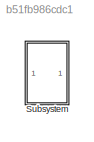
MODEL slx_b51fb986cdc1
KIND model
CONFIG AbsTol = auto
CONFIG EnableMultiTasking = off
CONFIG FixedStep = auto
CONFIG MaxStep = auto
CONFIG MinStep = auto
CONFIG RelTol = 1e-3
CONFIG SampleTimeConstraint = Unconstrained
CONFIG Solver = VariableStepAuto
CONFIG SolverName = VariableStepAuto
CONFIG StartTime = 0.0
CONFIG StopTime = 1500
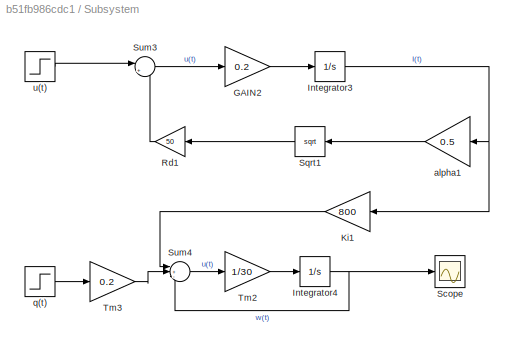
BLOCK [SubSystem] Subsystem
  Ports = []
  RequestExecContextInheritance = off
BLOCK [Gain] Subsystem/GAIN2
  Gain = 0.2
  OutDataTypeStr = Inherit: Inherit via internal rule
  ParamDataTypeStr = Inherit: Inherit via internal rule
  SaturateOnIntegerOverflow = off
BLOCK [Integrator] Subsystem/Integrator3
  InitialCondition = 0.0072
  Ports = [1, 1]
BLOCK [Integrator] Subsystem/Integrator4
  Ports = [1, 1]
BLOCK [Gain] Subsystem/Ki1
  Gain = 800
  OutDataTypeStr = Inherit: Inherit via internal rule
  ParamDataTypeStr = Inherit: Inherit via internal rule
  SaturateOnIntegerOverflow = off
BLOCK [Gain] Subsystem/Rd1
  Gain = 50
  OutDataTypeStr = Inherit: Inherit via internal rule
  ParamDataTypeStr = Inherit: Inherit via internal rule
  SaturateOnIntegerOverflow = off
BLOCK [Scope] Subsystem/Scope
  Floating = off
  NumInputPorts = 1
  Ports = [1]
  ScopeSpecificationString = Simulink.scopes.TimeScopeBlockCfg('CurrentConfiguration', extmgr.ConfigurationSet(extmgr.Configuration('Core','General UI',true),extmgr.Configuration('Core','Source UI',true),extmgr.Configuration('Sources','WiredSimulink',true),extmgr.Configuration('Visuals','Time Domain',true,'SerializedDisplays',{struct('MinYLimReal','-1.28','MaxYLimReal','11.52','YLabelReal','','MinYLimMag','0.00000','MaxYLimMa...<+1360ch>
BLOCK [Sqrt] Subsystem/Sqrt1
BLOCK [Sum] Subsystem/Sum3
  IconShape = round
  InputSameDT = off
  Inputs = |+-
  OutDataTypeStr = Inherit: Inherit via internal rule
  Ports = [2, 1]
  SaturateOnIntegerOverflow = off
BLOCK [Sum] Subsystem/Sum4
  IconShape = round
  InputSameDT = off
  Inputs = |+--
  OutDataTypeStr = Inherit: Inherit via internal rule
  Ports = [3, 1]
  SaturateOnIntegerOverflow = off
BLOCK [Gain] Subsystem/Tm2
  Gain = 1/30
  OutDataTypeStr = Inherit: Inherit via internal rule
  ParamDataTypeStr = Inherit: Inherit via internal rule
  SaturateOnIntegerOverflow = off
BLOCK [Gain] Subsystem/Tm3
  Gain = 0.2
  OutDataTypeStr = Inherit: Inherit via internal rule
  ParamDataTypeStr = Inherit: Inherit via internal rule
  SaturateOnIntegerOverflow = off
BLOCK [Gain] Subsystem/alpha1
  Gain = 0.5
  OutDataTypeStr = Inherit: Inherit via internal rule
  ParamDataTypeStr = Inherit: Inherit via internal rule
  SaturateOnIntegerOverflow = off
BLOCK [Step] Subsystem/q(t)
  After = 0
  SampleTime = 0
BLOCK [Step] Subsystem/u(t)
  After = 4
  Before = 3
  SampleTime = 0
LINE Subsystem/GAIN2:1 -> Subsystem/Integrator3:1
NET Subsystem/Integrator3:1 -> Subsystem/Ki1:1, Subsystem/alpha1:1
NET Subsystem/Integrator4:1 -> Subsystem/Scope:1, Subsystem/Sum4:3
LINE Subsystem/Ki1:1 -> Subsystem/Sum4:1
LINE Subsystem/Rd1:1 -> Subsystem/Sum3:2
LINE Subsystem/Sqrt1:1 -> Subsystem/Rd1:1
LINE Subsystem/Sum3:1 -> Subsystem/GAIN2:1
LINE Subsystem/Sum4:1 -> Subsystem/Tm2:1
LINE Subsystem/Tm2:1 -> Subsystem/Integrator4:1
LINE Subsystem/Tm3:1 -> Subsystem/Sum4:2
LINE Subsystem/alpha1:1 -> Subsystem/Sqrt1:1
LINE Subsystem/q(t):1 -> Subsystem/Tm3:1
LINE Subsystem/u(t):1 -> Subsystem/Sum3:1
note: NET lines group one-source signal fan-out (src -> all destinations, sorted); 1:1 wires keep LINE
